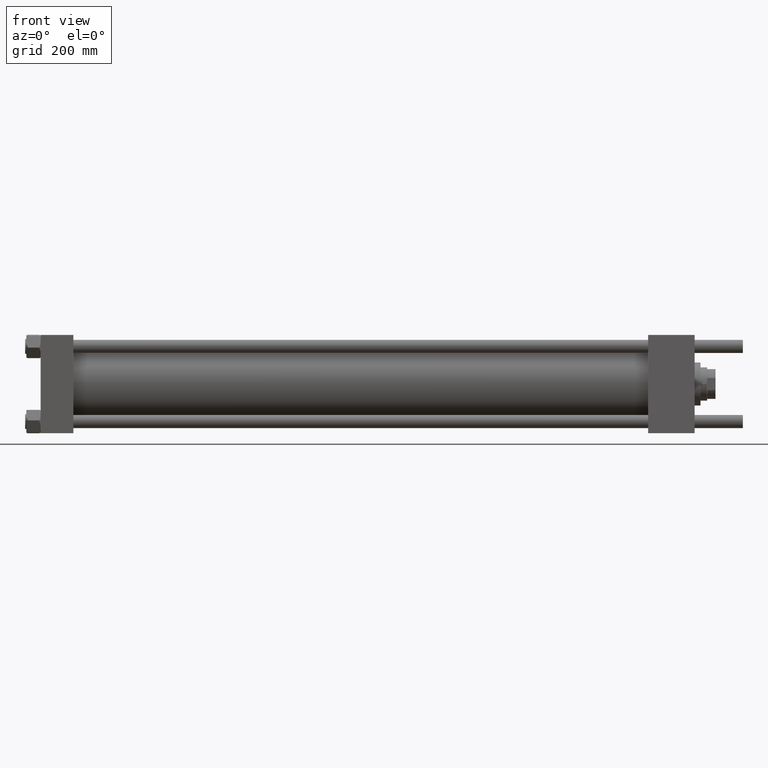
[diagram: clean part render]
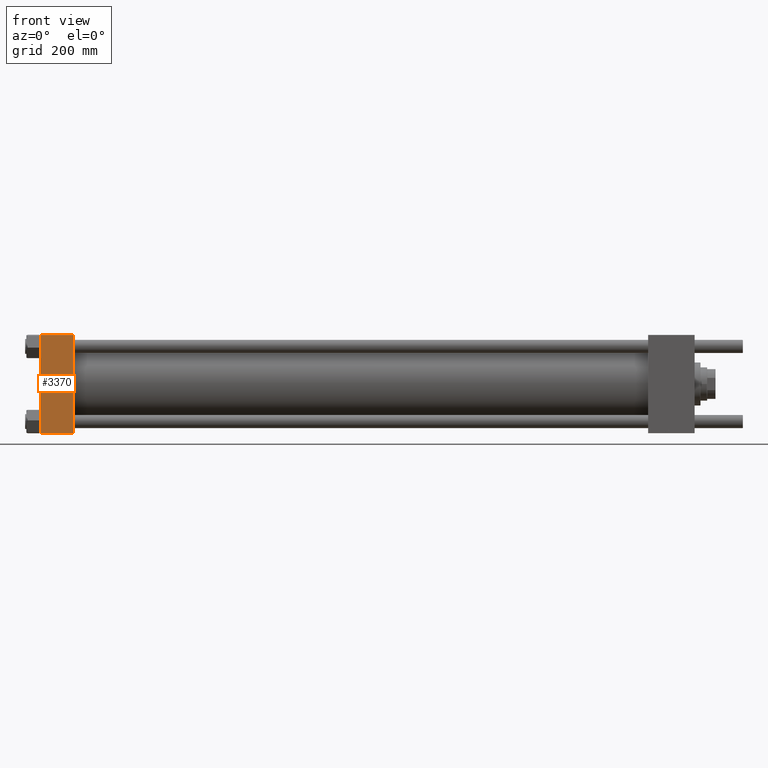
[diagram: same view with one face highlighted and labeled with its STEP entity id]
A machine part, front view. The second image highlights one B-rep face of the part: STEP entity #3370.
In plain terms, the highlighted planar face has unit normal (0, 1, -0).
Its self-contained STEP definition (entity closure, byte-faithful):
#2302 = VECTOR ( 'NONE', #57192, 1000.000000000000000 ) ;
#3370 = ADVANCED_FACE ( 'NONE', ( #26519 ), #21034, .F. ) ;
#5092 = EDGE_CURVE ( 'NONE', #31673, #55454, #23109, .T. ) ;
#8709 = ORIENTED_EDGE ( 'NONE', *, *, #5092, .T. ) ;
#12846 = CARTESIAN_POINT ( 'NONE',  ( 55.00000000000000000, -82.49999999999997158, 82.00000000000001421 ) ) ;
#12948 = LINE ( 'NONE', #39301, #23530 ) ;
#15322 = EDGE_CURVE ( 'NONE', #55454, #46420, #48899, .T. ) ;
#16696 = ORIENTED_EDGE ( 'NONE', *, *, #47074, .F. ) ;
#16997 = CARTESIAN_POINT ( 'NONE',  ( 0.000000000000000000, -82.49999999999997158, 82.00000000000001421 ) ) ;
#18579 = VERTEX_POINT ( 'NONE', #47877 ) ;
#21034 = PLANE ( 'NONE',  #23473 ) ;
#21080 = DIRECTION ( 'NONE',  ( 1.000000000000000000, 0.000000000000000000, 0.000000000000000000 ) ) ;
#21305 = DIRECTION ( 'NONE',  ( 0.000000000000000000, 1.682156097916903588E-16, 1.000000000000000000 ) ) ;
#21823 = VECTOR ( 'NONE', #45116, 1000.000000000000000 ) ;
#23109 = LINE ( 'NONE', #40771, #26285 ) ;
#23473 = AXIS2_PLACEMENT_3D ( 'NONE', #34634, #44177, #21305 ) ;
#23530 = VECTOR ( 'NONE', #21080, 1000.000000000000000 ) ;
#23794 = ORIENTED_EDGE ( 'NONE', *, *, #15322, .T. ) ;
#25957 = ORIENTED_EDGE ( 'NONE', *, *, #45250, .T. ) ;
#26285 = VECTOR ( 'NONE', #42991, 1000.000000000000000 ) ;
#26519 = FACE_OUTER_BOUND ( 'NONE', #55662, .T. ) ;
#31673 = VERTEX_POINT ( 'NONE', #12846 ) ;
#34340 = LINE ( 'NONE', #52286, #2302 ) ;
#34634 = CARTESIAN_POINT ( 'NONE',  ( 55.00000000000000000, -82.49999999999997158, 82.50000000000001421 ) ) ;
#39301 = CARTESIAN_POINT ( 'NONE',  ( 55.00000000000000000, -82.50000000000000000, -81.99999999999998579 ) ) ;
#40771 = CARTESIAN_POINT ( 'NONE',  ( 55.00000000000000000, -82.49999999999997158, 82.00000000000001421 ) ) ;
#42991 = DIRECTION ( 'NONE',  ( -1.000000000000000000, 0.000000000000000000, 0.000000000000000000 ) ) ;
#43235 = CARTESIAN_POINT ( 'NONE',  ( 0.000000000000000000, -82.50000000000000000, -81.99999999999998579 ) ) ;
#44177 = DIRECTION ( 'NONE',  ( 0.000000000000000000, 1.000000000000000000, -1.682156097916903588E-16 ) ) ;
#45116 = DIRECTION ( 'NONE',  ( 0.000000000000000000, -1.682156097916903588E-16, -1.000000000000000000 ) ) ;
#45250 = EDGE_CURVE ( 'NONE', #46420, #18579, #12948, .T. ) ;
#46420 = VERTEX_POINT ( 'NONE', #43235 ) ;
#47074 = EDGE_CURVE ( 'NONE', #31673, #18579, #34340, .T. ) ;
#47877 = CARTESIAN_POINT ( 'NONE',  ( 55.00000000000000000, -82.50000000000000000, -81.99999999999998579 ) ) ;
#48899 = LINE ( 'NONE', #49181, #21823 ) ;
#49181 = CARTESIAN_POINT ( 'NONE',  ( 0.000000000000000000, -82.49999999999997158, 82.50000000000001421 ) ) ;
#52286 = CARTESIAN_POINT ( 'NONE',  ( 55.00000000000000000, -82.49999999999997158, 82.50000000000001421 ) ) ;
#55454 = VERTEX_POINT ( 'NONE', #16997 ) ;
#55662 = EDGE_LOOP ( 'NONE', ( #23794, #25957, #16696, #8709 ) ) ;
#57192 = DIRECTION ( 'NONE',  ( 0.000000000000000000, -1.682156097916903588E-16, -1.000000000000000000 ) ) ;